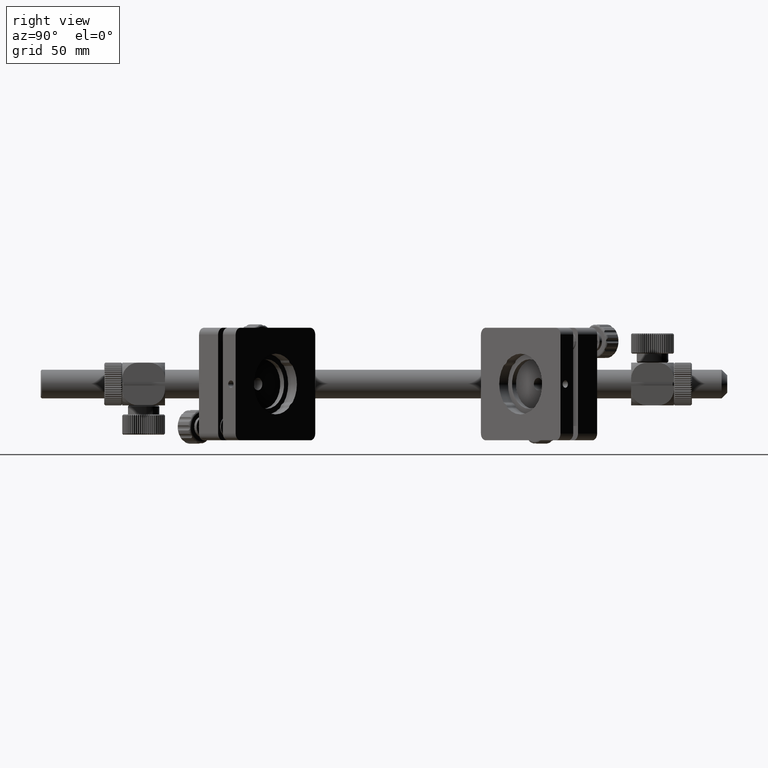
[diagram: clean part render]
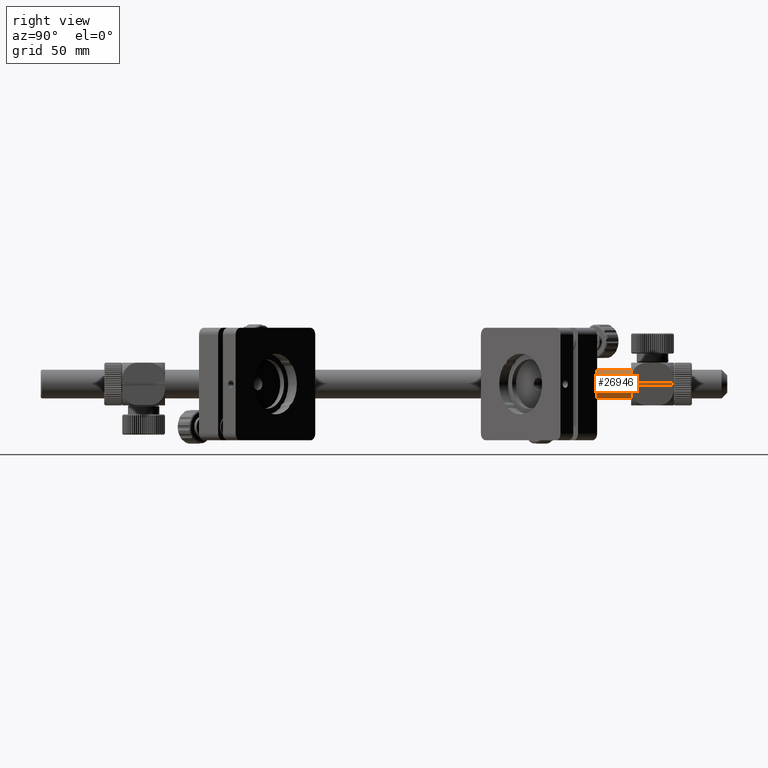
[diagram: same view with one face highlighted and labeled with its STEP entity id]
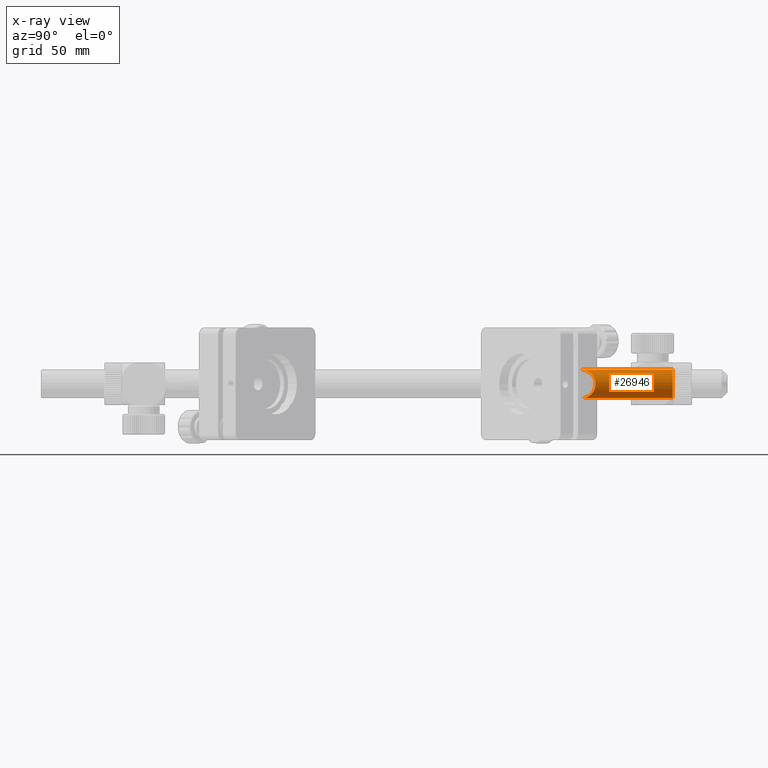
[diagram: x-ray of the same camera — body ghosted, the highlighted face saturated]
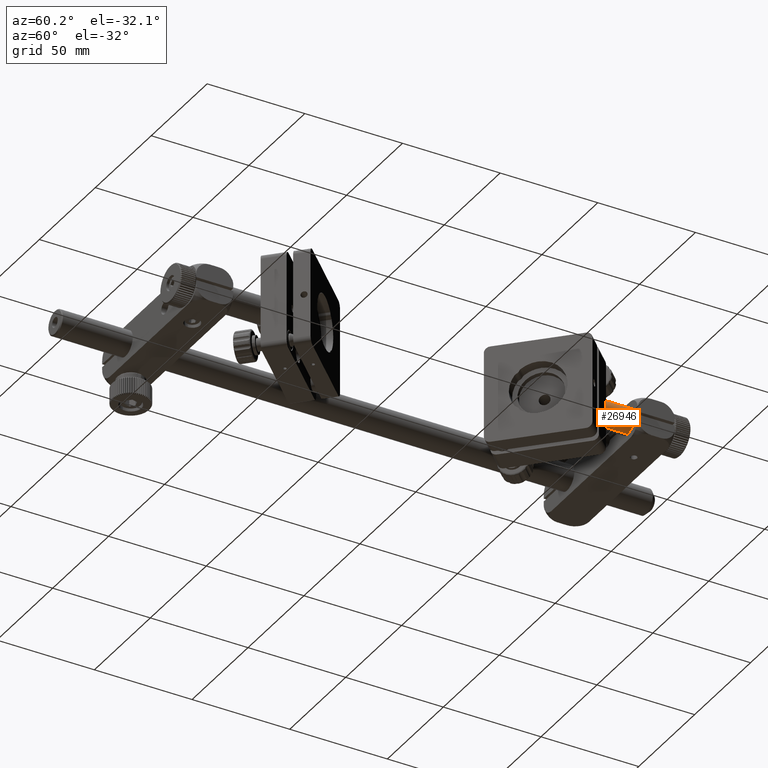
[diagram: same view with one face highlighted and labeled with its STEP entity id]
A machine part, right view. The second image highlights one B-rep face of the part: STEP entity #26946.
The next image is the same camera in x-ray: the body ghosted, the highlighted face saturated — about 0% of this face is hidden behind the body in this view.
A second angle (auxiliary view) of the same face is appended — the face is thin or edge-on in the first view.
In plain terms, the highlighted cylindrical surface (edge-blend (fillet) strip) has radius 6.35 mm, axis along (0, 1, -0).
Its self-contained STEP definition (entity closure, byte-faithful):
#778 = CYLINDRICAL_SURFACE ( 'NONE', #4794, 6.349999999999995204 ) ;
#3122 = LINE ( 'NONE', #41556, #47088 ) ;
#4794 = AXIS2_PLACEMENT_3D ( 'NONE', #30909, #45501, #26160 ) ;
#6583 = EDGE_CURVE ( 'NONE', #17627, #11838, #3122, .T. ) ;
#10925 = CARTESIAN_POINT ( 'NONE',  ( 54.00000000000022737, 255.3765331105717848, -6.350000000000044942 ) ) ;
#10994 = LINE ( 'NONE', #25622, #34239 ) ;
#11838 = VERTEX_POINT ( 'NONE', #37860 ) ;
#12120 = CARTESIAN_POINT ( 'NONE',  ( 66.70000000000011653, 268.0765331105718587, -6.350000000000020961 ) ) ;
#12353 = VERTEX_POINT ( 'NONE', #58306 ) ;
#12710 = DIRECTION ( 'NONE',  ( -1.606764392797348989E-15, -1.000000000000000000, 2.068403935397957870E-16 ) ) ;
#16719 = ORIENTED_EDGE ( 'NONE', *, *, #32509, .T. ) ;
#16927 = CARTESIAN_POINT ( 'NONE',  ( 54.00000000000022737, 255.3765331105718417, 6.349999999999946354 ) ) ;
#17605 = EDGE_LOOP ( 'NONE', ( #22687, #16719, #45800, #23895 ) ) ;
#17627 = VERTEX_POINT ( 'NONE', #10925 ) ;
#18807 = EDGE_CURVE ( 'NONE', #11838, #35616, #34464, .T. ) ;
#21385 = CARTESIAN_POINT ( 'NONE',  ( 66.70000000000014495, 268.0765331105719156, 6.349999999999867306 ) ) ;
#22687 = ORIENTED_EDGE ( 'NONE', *, *, #60712, .F. ) ;
#23895 = ORIENTED_EDGE ( 'NONE', *, *, #18807, .T. ) ;
#25622 = CARTESIAN_POINT ( 'NONE',  ( 54.00000000000022027, 251.5265331105717621, 6.349999999999947242 ) ) ;
#26160 = DIRECTION ( 'NONE',  ( 0.000000000000000000, 0.000000000000000000, -1.000000000000000000 ) ) ;
#26258 = DIRECTION ( 'NONE',  ( 1.606764392797349186E-15, 1.000000000000000000, -2.068403935397958117E-16 ) ) ;
#26358 = AXIS2_PLACEMENT_3D ( 'NONE', #51742, #12710, #46989 ) ;
#26946 = ADVANCED_FACE ( 'NONE', ( #59100 ), #778, .T. ) ;
#30909 = CARTESIAN_POINT ( 'NONE',  ( 54.00000000000022027, 251.5265331105717621, -4.857222008054683781E-14 ) ) ;
#32509 = EDGE_CURVE ( 'NONE', #12353, #17627, #61637, .T. ) ;
#34239 = VECTOR ( 'NONE', #26258, 1000.000000000000000 ) ;
#34464 = CIRCLE ( 'NONE', #26358, 6.349999999999995204 ) ;
#35616 = VERTEX_POINT ( 'NONE', #61457 ) ;
#37742 = DIRECTION ( 'NONE',  ( 1.606764392797349186E-15, 1.000000000000000000, -2.068403935397958117E-16 ) ) ;
#37860 = CARTESIAN_POINT ( 'NONE',  ( 54.00000000000025580, 296.0265331105717337, -6.350000000000058265 ) ) ;
#41556 = CARTESIAN_POINT ( 'NONE',  ( 54.00000000000022027, 251.5265331105717621, -6.350000000000044054 ) ) ;
#45501 = DIRECTION ( 'NONE',  ( 1.606764392797349186E-15, 1.000000000000000000, -2.068403935397958117E-16 ) ) ;
#45800 = ORIENTED_EDGE ( 'NONE', *, *, #6583, .T. ) ;
#46989 = DIRECTION ( 'NONE',  ( 0.000000000000000000, 0.000000000000000000, 1.000000000000000000 ) ) ;
#47088 = VECTOR ( 'NONE', #37742, 1000.000000000000000 ) ;
#50526 = CARTESIAN_POINT ( 'NONE',  ( 54.00000000000022737, 255.3765331105717848, -6.350000000000044942 ) ) ;
#51742 = CARTESIAN_POINT ( 'NONE',  ( 54.00000000000027001, 296.0265331105717337, -5.777661759306772793E-14 ) ) ;
#58306 = CARTESIAN_POINT ( 'NONE',  ( 54.00000000000022737, 255.3765331105718417, 6.349999999999946354 ) ) ;
#59100 = FACE_OUTER_BOUND ( 'NONE', #17605, .T. ) ;
#60712 = EDGE_CURVE ( 'NONE', #12353, #35616, #10994, .T. ) ;
#61457 = CARTESIAN_POINT ( 'NONE',  ( 54.00000000000025580, 296.0265331105717337, 6.349999999999941913 ) ) ;
#61637 =( BOUNDED_CURVE ( )  B_SPLINE_CURVE ( 3, ( #16927, #21385, #12120, #50526 ),
 .UNSPECIFIED., .F., .T. ) 
 B_SPLINE_CURVE_WITH_KNOTS ( ( 4, 4 ),
 ( 4.712388980384695891, 7.853981633974481014 ),
 .UNSPECIFIED. ) 
 CURVE ( )  GEOMETRIC_REPRESENTATION_ITEM ( )  RATIONAL_B_SPLINE_CURVE ( ( 1.000000000000000000, 0.3333333333333360349, 0.3333333333333360349, 1.000000000000000000 ) ) 
 REPRESENTATION_ITEM ( '' )  );